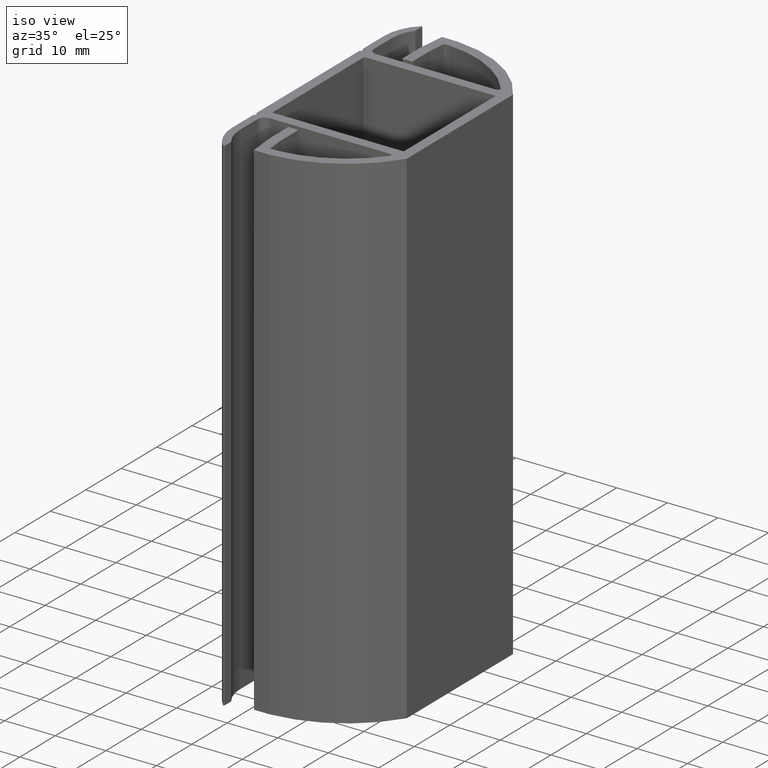
[diagram: clean part render]
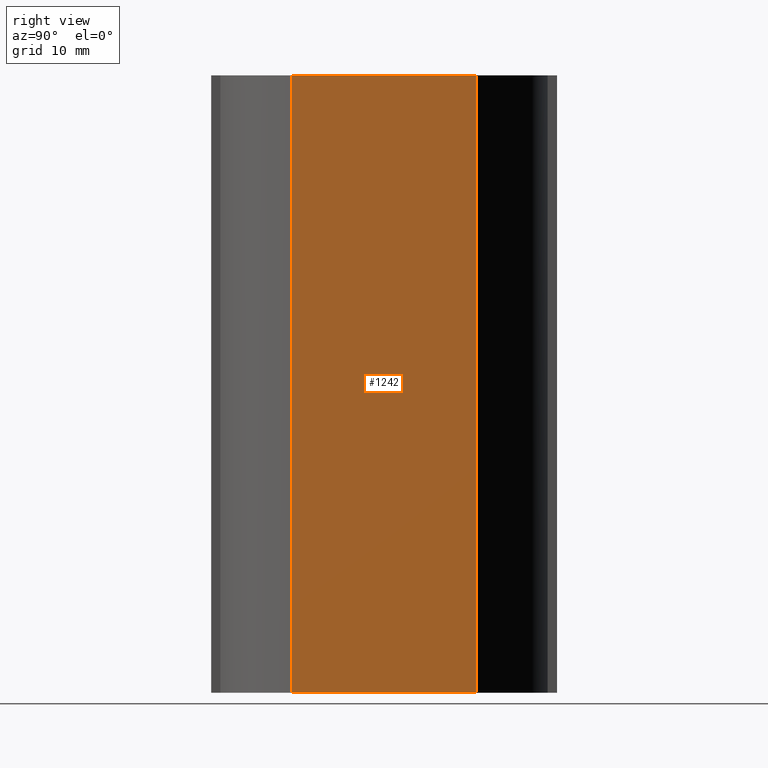
[diagram: tour spotlight — one face highlighted and labeled with its STEP entity id]
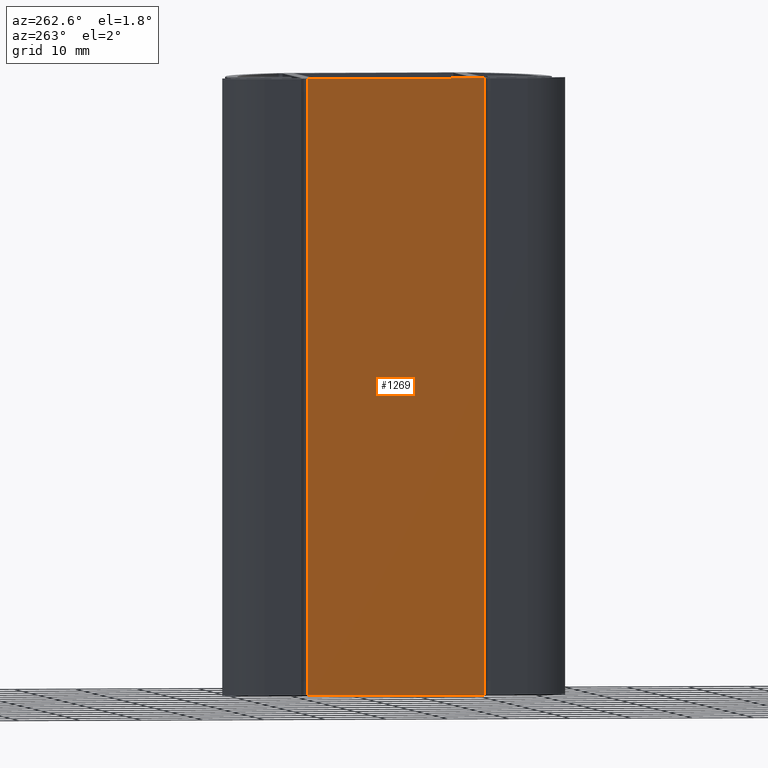
[diagram: tour spotlight — one face highlighted and labeled with its STEP entity id]
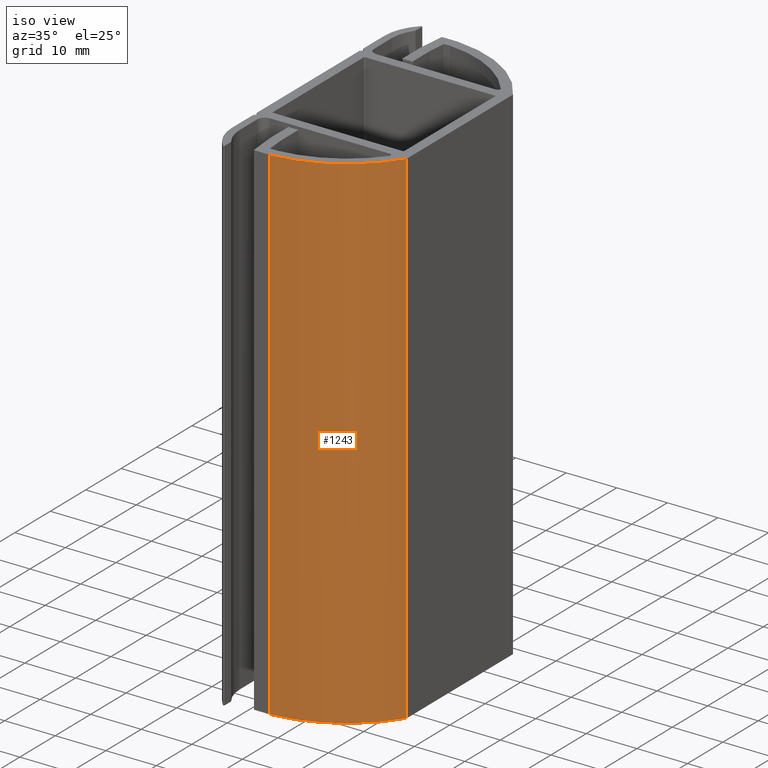
[diagram: tour spotlight — one face highlighted and labeled with its STEP entity id]
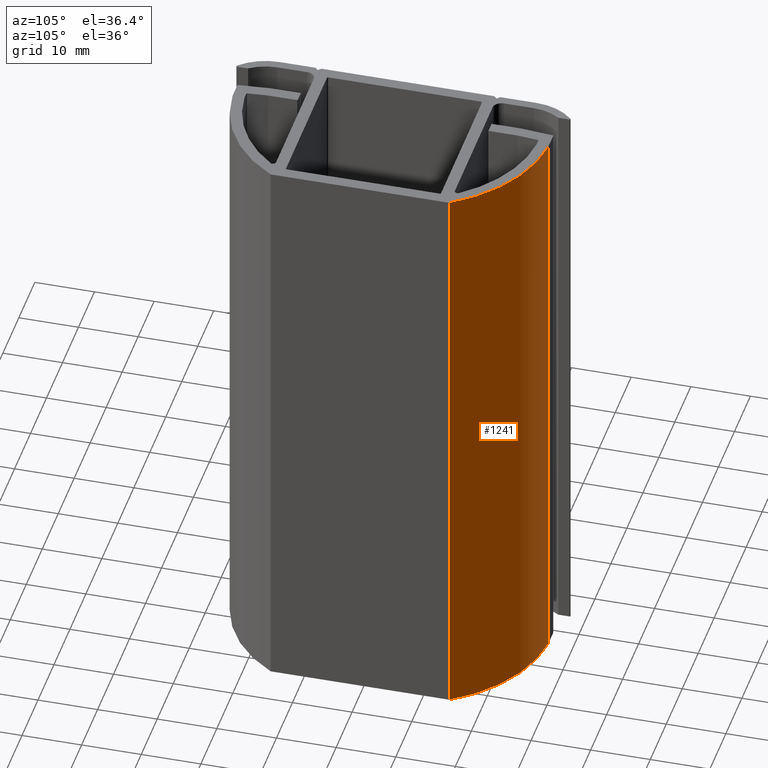
[diagram: tour spotlight — one face highlighted and labeled with its STEP entity id]
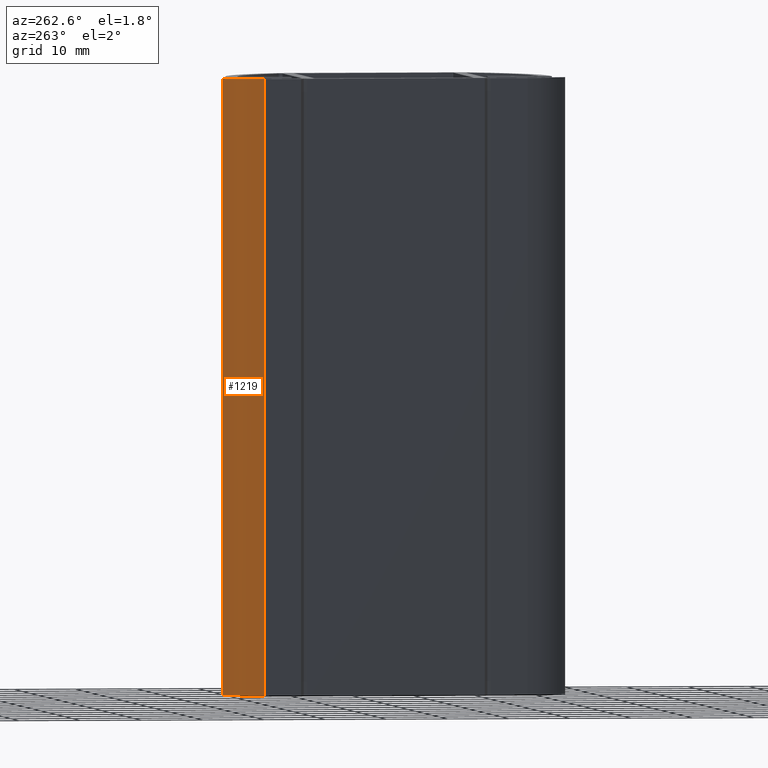
[diagram: tour spotlight — one face highlighted and labeled with its STEP entity id]
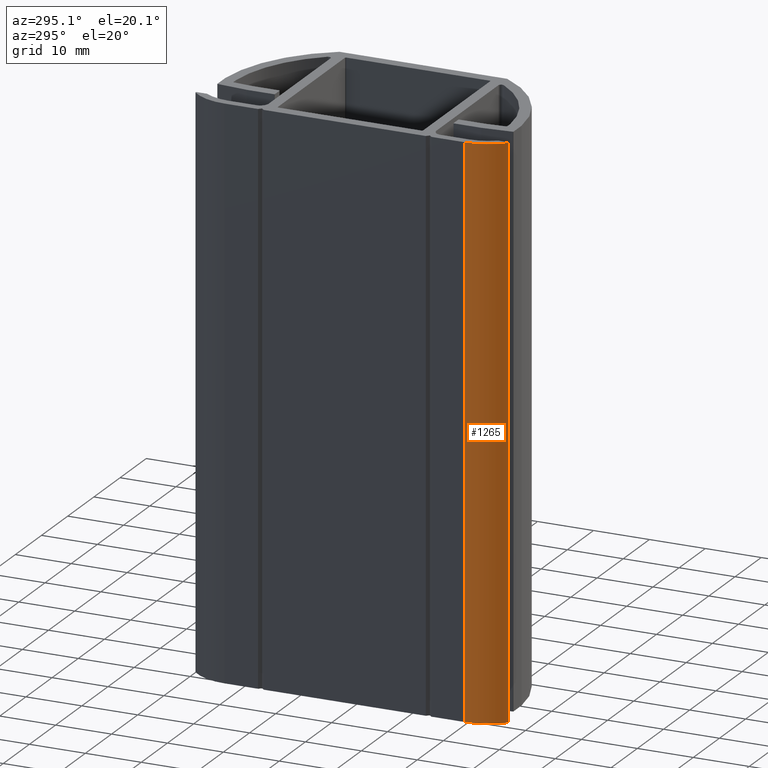
[diagram: tour spotlight — one face highlighted and labeled with its STEP entity id]
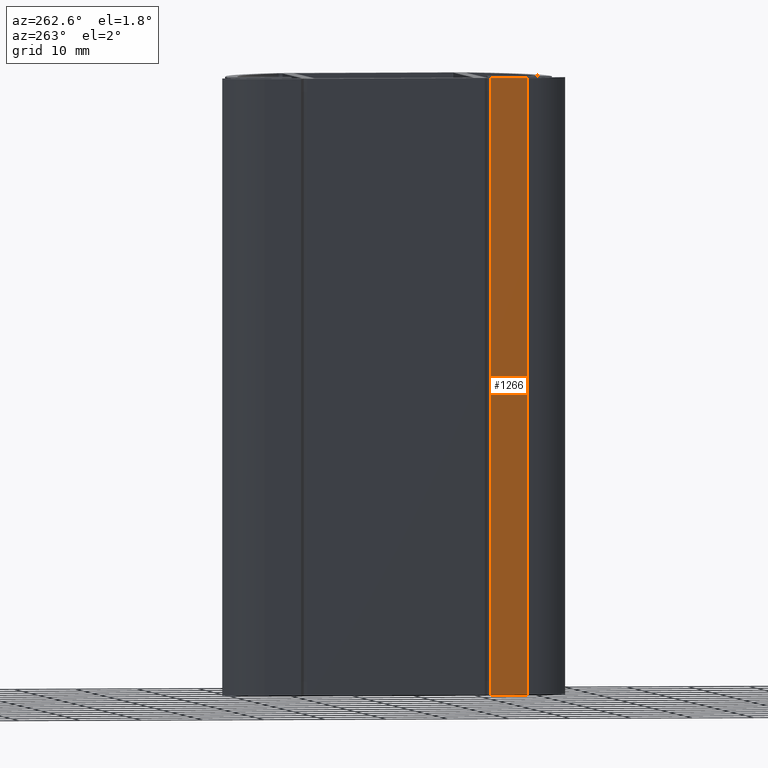
[diagram: tour spotlight — one face highlighted and labeled with its STEP entity id]
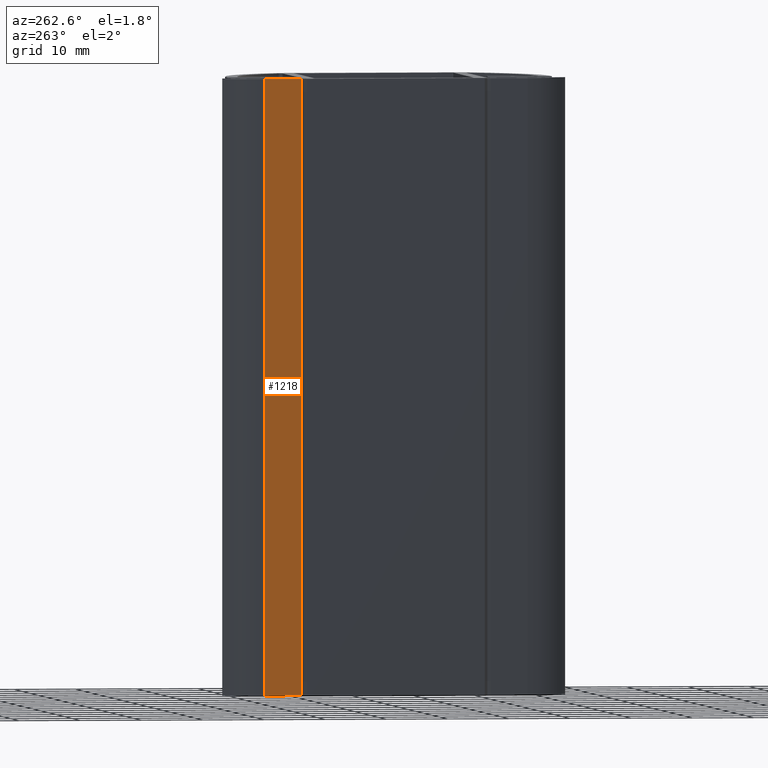
[diagram: tour spotlight — one face highlighted and labeled with its STEP entity id]
A machine part: a face-by-face anatomy tour. The part has 64 B-rep faces; the first image is the clean iso view, then the 8 largest visible faces are spotlighted one at a time (largest first), each with its STEP entity span.

Face 1 — right view, entity #1242. In plain terms, the highlighted planar face has unit normal (1, -0, 0).
Definition (entity closure, byte-faithful):
#36=PLANE($,#1353);
#87=FACE_OUTER_BOUND($,#151,.T.);
#151=EDGE_LOOP($,(#1005,#1006,#1007,#1008));
#268=LINE($,#1872,#398);
#323=LINE($,#2029,#453);
#324=LINE($,#2032,#454);
#325=LINE($,#2033,#455);
#398=VECTOR($,#1485,29.9999999999997);
#453=VECTOR($,#1640,100.);
#454=VECTOR($,#1643,29.9999999999997);
#455=VECTOR($,#1644,100.);
#540=VERTEX_POINT($,#1869);
#541=VERTEX_POINT($,#1871);
#593=VERTEX_POINT($,#2027);
#594=VERTEX_POINT($,#2031);
#672=EDGE_CURVE($,#540,#541,#268,.T.);
#751=EDGE_CURVE($,#540,#593,#323,.T.);
#752=EDGE_CURVE($,#594,#593,#324,.T.);
#753=EDGE_CURVE($,#541,#594,#325,.T.);
#1005=ORIENTED_EDGE($,*,*,#751,.T.);
#1006=ORIENTED_EDGE($,*,*,#752,.F.);
#1007=ORIENTED_EDGE($,*,*,#753,.F.);
#1008=ORIENTED_EDGE($,*,*,#672,.F.);
#1242=ADVANCED_FACE($,(#87),#36,.T.);
#1353=AXIS2_PLACEMENT_3D($,#2030,#1641,#1642);
#1485=DIRECTION($,(-8.14163551391791E-016,-1.,0.));
#1640=DIRECTION($,(0.,0.,1.));
#1641=DIRECTION('center_axis',(1.,-8.14163551391791E-016,0.));
#1642=DIRECTION('ref_axis',(8.88178419700125E-016,1.,0.));
#1643=DIRECTION($,(8.14163551391791E-016,1.,0.));
#1644=DIRECTION($,(0.,0.,1.));
#1869=CARTESIAN_POINT('',(15.0000000000009,14.9999999999999,-50.));
#1871=CARTESIAN_POINT('',(15.0000000000009,-14.9999999999998,-50.));
#1872=CARTESIAN_POINT($,(15.0000000000009,-14.9999999999998,-50.));
#2027=CARTESIAN_POINT('',(15.0000000000009,14.9999999999999,50.));
#2029=CARTESIAN_POINT($,(15.0000000000009,14.9999999999999,0.));
#2030=CARTESIAN_POINT('Origin',(15.0000000000009,-14.9999999999998,0.));
#2031=CARTESIAN_POINT('',(15.0000000000009,-14.9999999999998,50.));
#2032=CARTESIAN_POINT($,(15.0000000000009,-14.9999999999998,50.));
#2033=CARTESIAN_POINT($,(15.0000000000009,-14.9999999999998,0.));

Face 2 — auxiliary view, entity #1269. In plain terms, the highlighted planar face has unit normal (-1, 0, 0).
Definition (entity closure, byte-faithful):
#51=PLANE($,#1392);
#114=FACE_OUTER_BOUND($,#178,.T.);
#178=EDGE_LOOP($,(#1113,#1114,#1115,#1116));
#253=LINE($,#1818,#383);
#283=LINE($,#1926,#413);
#365=LINE($,#2137,#495);
#366=LINE($,#2139,#496);
#383=VECTOR($,#1446,28.9989443605159);
#413=VECTOR($,#1526,100.);
#495=VECTOR($,#1760,100.);
#496=VECTOR($,#1763,28.9989443605159);
#513=VERTEX_POINT($,#1816);
#514=VERTEX_POINT($,#1817);
#567=VERTEX_POINT($,#1925);
#620=VERTEX_POINT($,#2135);
#645=EDGE_CURVE($,#513,#514,#253,.T.);
#699=EDGE_CURVE($,#567,#514,#283,.T.);
#805=EDGE_CURVE($,#513,#620,#365,.T.);
#806=EDGE_CURVE($,#567,#620,#366,.T.);
#1113=ORIENTED_EDGE($,*,*,#805,.T.);
#1114=ORIENTED_EDGE($,*,*,#806,.F.);
#1115=ORIENTED_EDGE($,*,*,#699,.T.);
#1116=ORIENTED_EDGE($,*,*,#645,.F.);
#1269=ADVANCED_FACE($,(#114),#51,.T.);
#1392=AXIS2_PLACEMENT_3D($,#2138,#1761,#1762);
#1446=DIRECTION($,(3.06279569579589E-016,1.,0.));
#1526=DIRECTION($,(0.,0.,-1.));
#1760=DIRECTION($,(0.,0.,1.));
#1761=DIRECTION('center_axis',(-1.,3.06279569579589E-016,0.));
#1762=DIRECTION('ref_axis',(-3.5527136788005E-016,-1.,0.));
#1763=DIRECTION($,(-3.06279569579589E-016,-1.,0.));
#1816=CARTESIAN_POINT('',(-15.0000000000003,-14.4994721802575,-50.));
#1817=CARTESIAN_POINT('',(-15.0000000000003,14.4994721802584,-50.));
#1818=CARTESIAN_POINT($,(-15.0000000000003,14.4994721802584,-50.));
#1925=CARTESIAN_POINT('',(-15.0000000000003,14.4994721802584,50.));
#1926=CARTESIAN_POINT($,(-15.0000000000003,14.4994721802584,0.));
#2135=CARTESIAN_POINT('',(-15.0000000000003,-14.4994721802575,50.));
#2137=CARTESIAN_POINT($,(-15.0000000000003,-14.4994721802575,0.));
#2138=CARTESIAN_POINT('Origin',(-15.0000000000003,14.4994721802584,0.));
#2139=CARTESIAN_POINT($,(-15.0000000000003,14.4994721802584,50.));

Face 3 — iso view, entity #1243. In plain terms, the highlighted cylindrical surface (partial cylindrical patch) has radius 24.3137 mm, axis along (0, 0, 1).
Definition (entity closure, byte-faithful):
#88=FACE_OUTER_BOUND($,#152,.T.);
#152=EDGE_LOOP($,(#1009,#1010,#1011,#1012));
#201=CIRCLE($,#1303,24.3137051036367);
#225=CIRCLE($,#1355,24.3137051036367);
#325=LINE($,#2033,#455);
#326=LINE($,#2037,#456);
#455=VECTOR($,#1644,100.);
#456=VECTOR($,#1649,100.);
#541=VERTEX_POINT($,#1871);
#542=VERTEX_POINT($,#1873);
#594=VERTEX_POINT($,#2031);
#595=VERTEX_POINT($,#2035);
#673=EDGE_CURVE($,#541,#542,#201,.T.);
#753=EDGE_CURVE($,#541,#594,#325,.T.);
#754=EDGE_CURVE($,#595,#594,#225,.T.);
#755=EDGE_CURVE($,#542,#595,#326,.T.);
#1009=ORIENTED_EDGE($,*,*,#753,.T.);
#1010=ORIENTED_EDGE($,*,*,#754,.F.);
#1011=ORIENTED_EDGE($,*,*,#755,.F.);
#1012=ORIENTED_EDGE($,*,*,#673,.F.);
#1195=CYLINDRICAL_SURFACE($,#1354,24.3137051036367);
#1243=ADVANCED_FACE($,(#88),#1195,.T.);
#1303=AXIS2_PLACEMENT_3D($,#1874,#1486,#1487);
#1354=AXIS2_PLACEMENT_3D($,#2034,#1645,#1646);
#1355=AXIS2_PLACEMENT_3D($,#2036,#1647,#1648);
#1486=DIRECTION('center_axis',(0.,0.,-1.));
#1487=DIRECTION('ref_axis',(0.0676172330316483,-0.997711335906906,0.));
#1644=DIRECTION($,(0.,0.,1.));
#1645=DIRECTION('center_axis',(0.,0.,1.));
#1646=DIRECTION('ref_axis',(0.0676172330316483,-0.997711335906906,0.));
#1647=DIRECTION('center_axis',(0.,0.,1.));
#1648=DIRECTION('ref_axis',(0.0676172330316483,-0.997711335906906,0.));
#1649=DIRECTION($,(0.,0.,1.));
#1871=CARTESIAN_POINT('',(15.0000000000009,-14.9999999999998,-50.));
#1873=CARTESIAN_POINT('',(-4.05351500164629,-26.5000000000004,-50.));
#1874=CARTESIAN_POINT('Origin',(-5.69754046550163,-2.2419408002051,-50.));
#2031=CARTESIAN_POINT('',(15.0000000000009,-14.9999999999998,50.));
#2033=CARTESIAN_POINT($,(15.0000000000009,-14.9999999999998,0.));
#2034=CARTESIAN_POINT('Origin',(-5.69754046550163,-2.2419408002051,0.));
#2035=CARTESIAN_POINT('',(-4.05351500164629,-26.5000000000004,50.));
#2036=CARTESIAN_POINT('Origin',(-5.69754046550163,-2.2419408002051,50.));
#2037=CARTESIAN_POINT($,(-4.05351500164629,-26.5000000000004,0.));

Face 4 — auxiliary view, entity #1241. In plain terms, the highlighted cylindrical surface (partial cylindrical patch) has radius 24.3137 mm, axis along (0, 0, 1).
Definition (entity closure, byte-faithful):
#86=FACE_OUTER_BOUND($,#150,.T.);
#150=EDGE_LOOP($,(#1001,#1002,#1003,#1004));
#200=CIRCLE($,#1302,24.3137051036367);
#224=CIRCLE($,#1352,24.3137051036367);
#322=LINE($,#2025,#452);
#323=LINE($,#2029,#453);
#452=VECTOR($,#1635,100.);
#453=VECTOR($,#1640,100.);
#539=VERTEX_POINT($,#1867);
#540=VERTEX_POINT($,#1869);
#592=VERTEX_POINT($,#2023);
#593=VERTEX_POINT($,#2027);
#671=EDGE_CURVE($,#539,#540,#200,.T.);
#749=EDGE_CURVE($,#539,#592,#322,.T.);
#750=EDGE_CURVE($,#593,#592,#224,.T.);
#751=EDGE_CURVE($,#540,#593,#323,.T.);
#1001=ORIENTED_EDGE($,*,*,#749,.T.);
#1002=ORIENTED_EDGE($,*,*,#750,.F.);
#1003=ORIENTED_EDGE($,*,*,#751,.F.);
#1004=ORIENTED_EDGE($,*,*,#671,.F.);
#1194=CYLINDRICAL_SURFACE($,#1351,24.3137051036367);
#1241=ADVANCED_FACE($,(#86),#1194,.T.);
#1302=AXIS2_PLACEMENT_3D($,#1870,#1483,#1484);
#1351=AXIS2_PLACEMENT_3D($,#2026,#1636,#1637);
#1352=AXIS2_PLACEMENT_3D($,#2028,#1638,#1639);
#1483=DIRECTION('center_axis',(0.,0.,-1.));
#1484=DIRECTION('ref_axis',(0.851270523242762,0.524727068348864,0.));
#1635=DIRECTION($,(0.,0.,1.));
#1636=DIRECTION('center_axis',(0.,0.,1.));
#1637=DIRECTION('ref_axis',(0.851270523242762,0.524727068348864,0.));
#1638=DIRECTION('center_axis',(0.,0.,1.));
#1639=DIRECTION('ref_axis',(0.851270523242762,0.524727068348864,0.));
#1640=DIRECTION($,(0.,0.,1.));
#1867=CARTESIAN_POINT('',(-4.05351500072705,26.5000000000005,-50.));
#1869=CARTESIAN_POINT('',(15.0000000000009,14.9999999999999,-50.));
#1870=CARTESIAN_POINT('Origin',(-5.69754046554159,2.24194080027012,-50.));
#2023=CARTESIAN_POINT('',(-4.05351500072705,26.5000000000005,50.));
#2025=CARTESIAN_POINT($,(-4.05351500072705,26.5000000000005,0.));
#2026=CARTESIAN_POINT('Origin',(-5.69754046554159,2.24194080027012,0.));
#2027=CARTESIAN_POINT('',(15.0000000000009,14.9999999999999,50.));
#2028=CARTESIAN_POINT('Origin',(-5.69754046554159,2.24194080027012,50.));
#2029=CARTESIAN_POINT($,(15.0000000000009,14.9999999999999,0.));

Face 5 — auxiliary view, entity #1219. In plain terms, the highlighted cylindrical surface (partial cylindrical patch) has radius 9 mm, axis along (0, 0, 1).
Definition (entity closure, byte-faithful):
#64=FACE_OUTER_BOUND($,#128,.T.);
#128=EDGE_LOOP($,(#913,#914,#915,#916));
#189=CIRCLE($,#1291,9.00000000000136);
#213=CIRCLE($,#1319,9.00000000000136);
#289=LINE($,#1937,#419);
#290=LINE($,#1941,#420);
#419=VECTOR($,#1536,100.);
#420=VECTOR($,#1541,100.);
#517=VERTEX_POINT($,#1823);
#518=VERTEX_POINT($,#1825);
#570=VERTEX_POINT($,#1935);
#571=VERTEX_POINT($,#1939);
#649=EDGE_CURVE($,#517,#518,#189,.T.);
#705=EDGE_CURVE($,#517,#570,#289,.T.);
#706=EDGE_CURVE($,#571,#570,#213,.T.);
#707=EDGE_CURVE($,#518,#571,#290,.T.);
#913=ORIENTED_EDGE($,*,*,#705,.T.);
#914=ORIENTED_EDGE($,*,*,#706,.F.);
#915=ORIENTED_EDGE($,*,*,#707,.F.);
#916=ORIENTED_EDGE($,*,*,#649,.F.);
#1183=CYLINDRICAL_SURFACE($,#1318,9.00000000000136);
#1219=ADVANCED_FACE($,(#64),#1183,.T.);
#1291=AXIS2_PLACEMENT_3D($,#1826,#1450,#1451);
#1318=AXIS2_PLACEMENT_3D($,#1938,#1537,#1538);
#1319=AXIS2_PLACEMENT_3D($,#1940,#1539,#1540);
#1450=DIRECTION('center_axis',(0.,0.,-1.));
#1451=DIRECTION('ref_axis',(-0.694905442519915,0.719101123595423,0.));
#1536=DIRECTION($,(0.,0.,1.));
#1537=DIRECTION('center_axis',(0.,0.,1.));
#1538=DIRECTION('ref_axis',(-0.694905442519915,0.719101123595423,0.));
#1539=DIRECTION('center_axis',(0.,0.,1.));
#1540=DIRECTION('ref_axis',(-0.694905442519915,0.719101123595423,0.));
#1541=DIRECTION($,(0.,0.,1.));
#1823=CARTESIAN_POINT('',(-15.0000000000003,21.4999999999999,-50.));
#1825=CARTESIAN_POINT('',(-12.2541489826792,27.9719101123597,-50.));
#1826=CARTESIAN_POINT('Origin',(-5.99999999999897,21.4999999999999,-50.));
#1935=CARTESIAN_POINT('',(-15.0000000000003,21.4999999999999,50.));
#1937=CARTESIAN_POINT($,(-15.0000000000003,21.4999999999999,0.));
#1938=CARTESIAN_POINT('Origin',(-5.99999999999897,21.4999999999999,0.));
#1939=CARTESIAN_POINT('',(-12.2541489826792,27.9719101123597,50.));
#1940=CARTESIAN_POINT('Origin',(-5.99999999999897,21.4999999999999,50.));
#1941=CARTESIAN_POINT($,(-12.2541489826792,27.9719101123597,0.));

Face 6 — auxiliary view, entity #1265. In plain terms, the highlighted cylindrical surface (partial cylindrical patch) has radius 9 mm, axis along (0, 0, 1).
Definition (entity closure, byte-faithful):
#110=FACE_OUTER_BOUND($,#174,.T.);
#174=EDGE_LOOP($,(#1097,#1098,#1099,#1100));
#212=CIRCLE($,#1314,9.00000000000136);
#236=CIRCLE($,#1388,9.00000000000136);
#358=LINE($,#2121,#488);
#359=LINE($,#2125,#489);
#488=VECTOR($,#1743,100.);
#489=VECTOR($,#1748,100.);
#563=VERTEX_POINT($,#1915);
#564=VERTEX_POINT($,#1917);
#616=VERTEX_POINT($,#2119);
#617=VERTEX_POINT($,#2123);
#695=EDGE_CURVE($,#563,#564,#212,.T.);
#797=EDGE_CURVE($,#563,#616,#358,.T.);
#798=EDGE_CURVE($,#617,#616,#236,.T.);
#799=EDGE_CURVE($,#564,#617,#359,.T.);
#1097=ORIENTED_EDGE($,*,*,#797,.T.);
#1098=ORIENTED_EDGE($,*,*,#798,.F.);
#1099=ORIENTED_EDGE($,*,*,#799,.F.);
#1100=ORIENTED_EDGE($,*,*,#695,.F.);
#1206=CYLINDRICAL_SURFACE($,#1387,9.00000000000136);
#1265=ADVANCED_FACE($,(#110),#1206,.T.);
#1314=AXIS2_PLACEMENT_3D($,#1918,#1519,#1520);
#1387=AXIS2_PLACEMENT_3D($,#2122,#1744,#1745);
#1388=AXIS2_PLACEMENT_3D($,#2124,#1746,#1747);
#1519=DIRECTION('center_axis',(0.,0.,-1.));
#1520=DIRECTION('ref_axis',(-1.,4.93432455388884E-016,0.));
#1743=DIRECTION($,(0.,0.,1.));
#1744=DIRECTION('center_axis',(0.,0.,1.));
#1745=DIRECTION('ref_axis',(-1.,4.93432455388884E-016,0.));
#1746=DIRECTION('center_axis',(0.,0.,1.));
#1747=DIRECTION('ref_axis',(-1.,4.93432455388884E-016,0.));
#1748=DIRECTION($,(0.,0.,1.));
#1915=CARTESIAN_POINT('',(-12.2541489826793,-27.9719101123598,-50.));
#1917=CARTESIAN_POINT('',(-15.0000000000003,-21.5000000000001,-50.));
#1918=CARTESIAN_POINT('Origin',(-5.99999999999898,-21.5000000000001,-50.));
#2119=CARTESIAN_POINT('',(-12.2541489826793,-27.9719101123598,50.));
#2121=CARTESIAN_POINT($,(-12.2541489826793,-27.9719101123598,0.));
#2122=CARTESIAN_POINT('Origin',(-5.99999999999898,-21.5000000000001,0.));
#2123=CARTESIAN_POINT('',(-15.0000000000003,-21.5000000000001,50.));
#2124=CARTESIAN_POINT('Origin',(-5.99999999999898,-21.5000000000001,50.));
#2125=CARTESIAN_POINT($,(-15.0000000000003,-21.5000000000001,0.));

Face 7 — auxiliary view, entity #1266. In plain terms, the highlighted planar face has unit normal (-1, 0, 0).
Definition (entity closure, byte-faithful):
#48=PLANE($,#1389);
#111=FACE_OUTER_BOUND($,#175,.T.);
#175=EDGE_LOOP($,(#1101,#1102,#1103,#1104));
#280=LINE($,#1920,#410);
#359=LINE($,#2125,#489);
#360=LINE($,#2128,#490);
#361=LINE($,#2129,#491);
#410=VECTOR($,#1521,5.99675075071072);
#489=VECTOR($,#1748,100.);
#490=VECTOR($,#1751,5.99675075071072);
#491=VECTOR($,#1752,100.);
#564=VERTEX_POINT($,#1917);
#565=VERTEX_POINT($,#1919);
#617=VERTEX_POINT($,#2123);
#618=VERTEX_POINT($,#2127);
#696=EDGE_CURVE($,#564,#565,#280,.T.);
#799=EDGE_CURVE($,#564,#617,#359,.T.);
#800=EDGE_CURVE($,#618,#617,#360,.T.);
#801=EDGE_CURVE($,#565,#618,#361,.T.);
#1101=ORIENTED_EDGE($,*,*,#799,.T.);
#1102=ORIENTED_EDGE($,*,*,#800,.F.);
#1103=ORIENTED_EDGE($,*,*,#801,.F.);
#1104=ORIENTED_EDGE($,*,*,#696,.F.);
#1266=ADVANCED_FACE($,(#111),#48,.T.);
#1389=AXIS2_PLACEMENT_3D($,#2126,#1749,#1750);
#1521=DIRECTION($,(3.70274860763081E-016,1.,0.));
#1748=DIRECTION($,(0.,0.,1.));
#1749=DIRECTION('center_axis',(-1.,3.70274860763081E-016,0.));
#1750=DIRECTION('ref_axis',(-3.5527136788005E-016,-1.,0.));
#1751=DIRECTION($,(-3.70274860763081E-016,-1.,0.));
#1752=DIRECTION($,(0.,0.,1.));
#1917=CARTESIAN_POINT('',(-15.0000000000003,-21.5000000000001,-50.));
#1919=CARTESIAN_POINT('',(-15.0000000000003,-15.5032492492893,-50.));
#1920=CARTESIAN_POINT($,(-15.0000000000003,-15.5032492492893,-50.));
#2123=CARTESIAN_POINT('',(-15.0000000000003,-21.5000000000001,50.));
#2125=CARTESIAN_POINT($,(-15.0000000000003,-21.5000000000001,0.));
#2126=CARTESIAN_POINT('Origin',(-15.0000000000003,-15.5032492492893,0.));
#2127=CARTESIAN_POINT('',(-15.0000000000003,-15.5032492492893,50.));
#2128=CARTESIAN_POINT($,(-15.0000000000003,-15.5032492492893,50.));
#2129=CARTESIAN_POINT($,(-15.0000000000003,-15.5032492492893,0.));

Face 8 — auxiliary view, entity #1218. In plain terms, the highlighted planar face has unit normal (-1, 0, 0).
Definition (entity closure, byte-faithful):
#24=PLANE($,#1317);
#63=FACE_OUTER_BOUND($,#127,.T.);
#127=EDGE_LOOP($,(#909,#910,#911,#912));
#256=LINE($,#1824,#386);
#287=LINE($,#1933,#417);
#288=LINE($,#1936,#418);
#289=LINE($,#1937,#419);
#386=VECTOR($,#1449,5.99675075070968);
#417=VECTOR($,#1532,100.);
#418=VECTOR($,#1535,5.99675075070968);
#419=VECTOR($,#1536,100.);
#516=VERTEX_POINT($,#1821);
#517=VERTEX_POINT($,#1823);
#569=VERTEX_POINT($,#1931);
#570=VERTEX_POINT($,#1935);
#648=EDGE_CURVE($,#516,#517,#256,.T.);
#703=EDGE_CURVE($,#516,#569,#287,.T.);
#704=EDGE_CURVE($,#570,#569,#288,.T.);
#705=EDGE_CURVE($,#517,#570,#289,.T.);
#909=ORIENTED_EDGE($,*,*,#703,.T.);
#910=ORIENTED_EDGE($,*,*,#704,.F.);
#911=ORIENTED_EDGE($,*,*,#705,.F.);
#912=ORIENTED_EDGE($,*,*,#648,.F.);
#1218=ADVANCED_FACE($,(#63),#24,.T.);
#1317=AXIS2_PLACEMENT_3D($,#1934,#1533,#1534);
#1449=DIRECTION($,(3.70274860763145E-016,1.,0.));
#1532=DIRECTION($,(0.,0.,1.));
#1533=DIRECTION('center_axis',(-1.,3.70274860763145E-016,0.));
#1534=DIRECTION('ref_axis',(-3.5527136788005E-016,-1.,0.));
#1535=DIRECTION($,(-3.70274860763145E-016,-1.,0.));
#1536=DIRECTION($,(0.,0.,1.));
#1821=CARTESIAN_POINT('',(-15.0000000000003,15.5032492492903,-50.));
#1823=CARTESIAN_POINT('',(-15.0000000000003,21.4999999999999,-50.));
#1824=CARTESIAN_POINT($,(-15.0000000000003,21.4999999999999,-50.));
#1931=CARTESIAN_POINT('',(-15.0000000000003,15.5032492492903,50.));
#1933=CARTESIAN_POINT($,(-15.0000000000003,15.5032492492903,0.));
#1934=CARTESIAN_POINT('Origin',(-15.0000000000003,21.4999999999999,0.));
#1935=CARTESIAN_POINT('',(-15.0000000000003,21.4999999999999,50.));
#1936=CARTESIAN_POINT($,(-15.0000000000003,21.4999999999999,50.));
#1937=CARTESIAN_POINT($,(-15.0000000000003,21.4999999999999,0.));